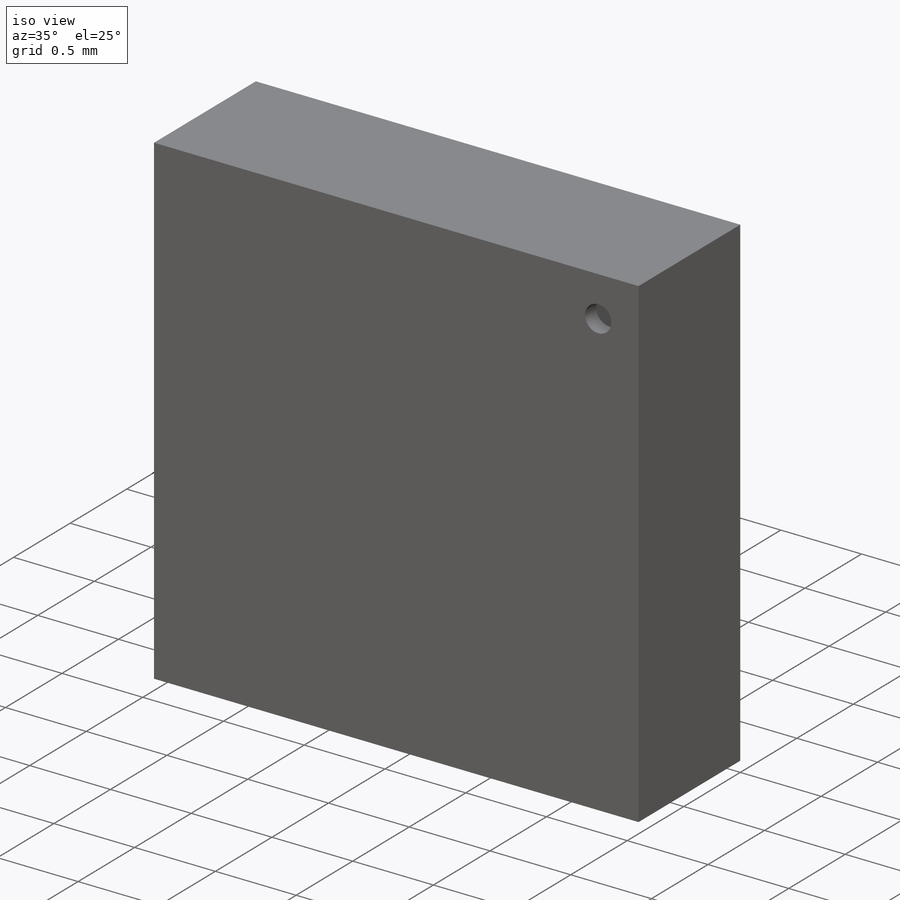
[diagram: iso view]
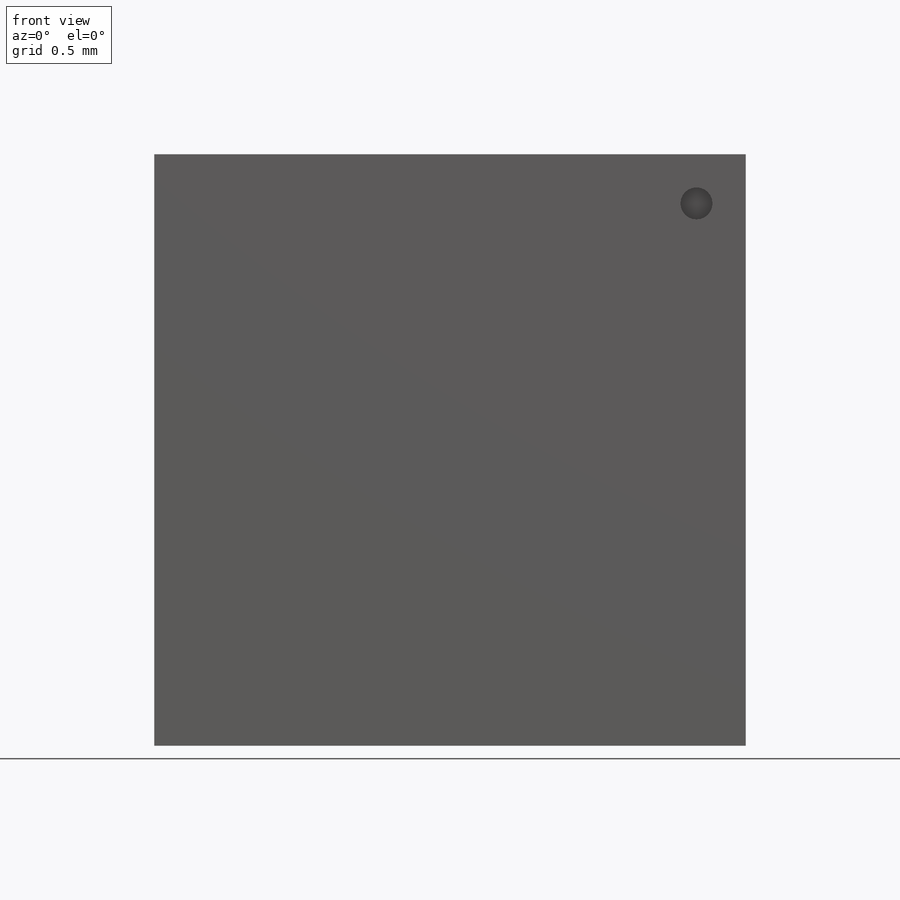
[diagram: front view]
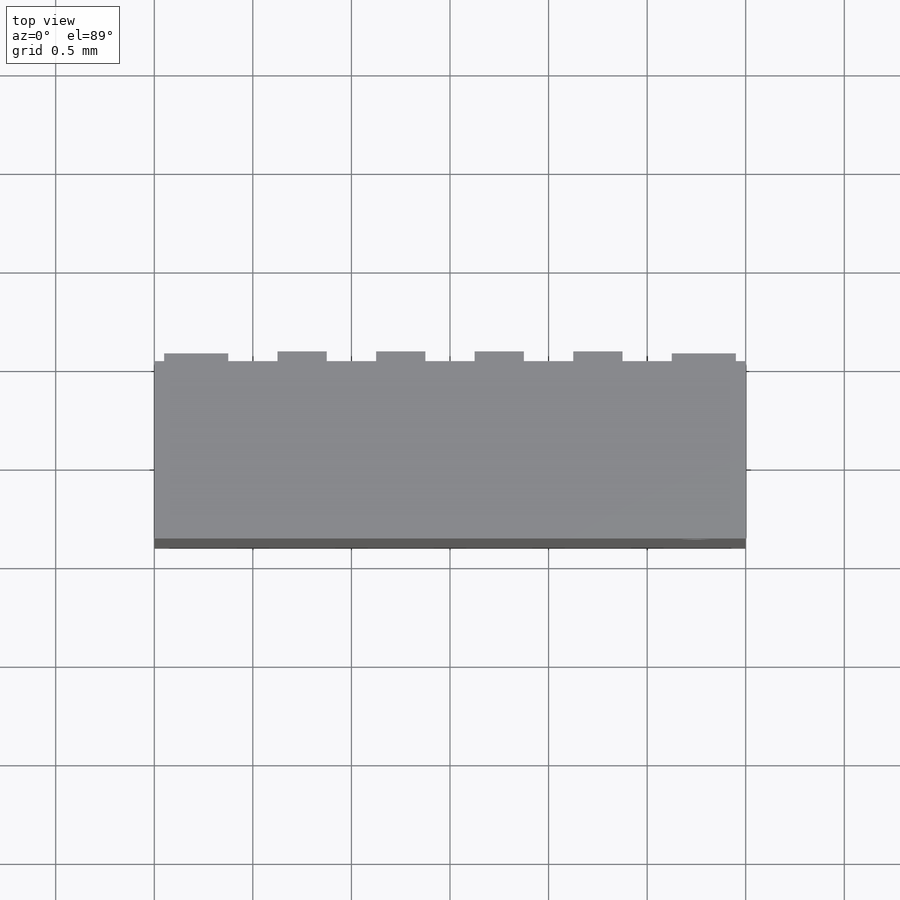
[diagram: top view]
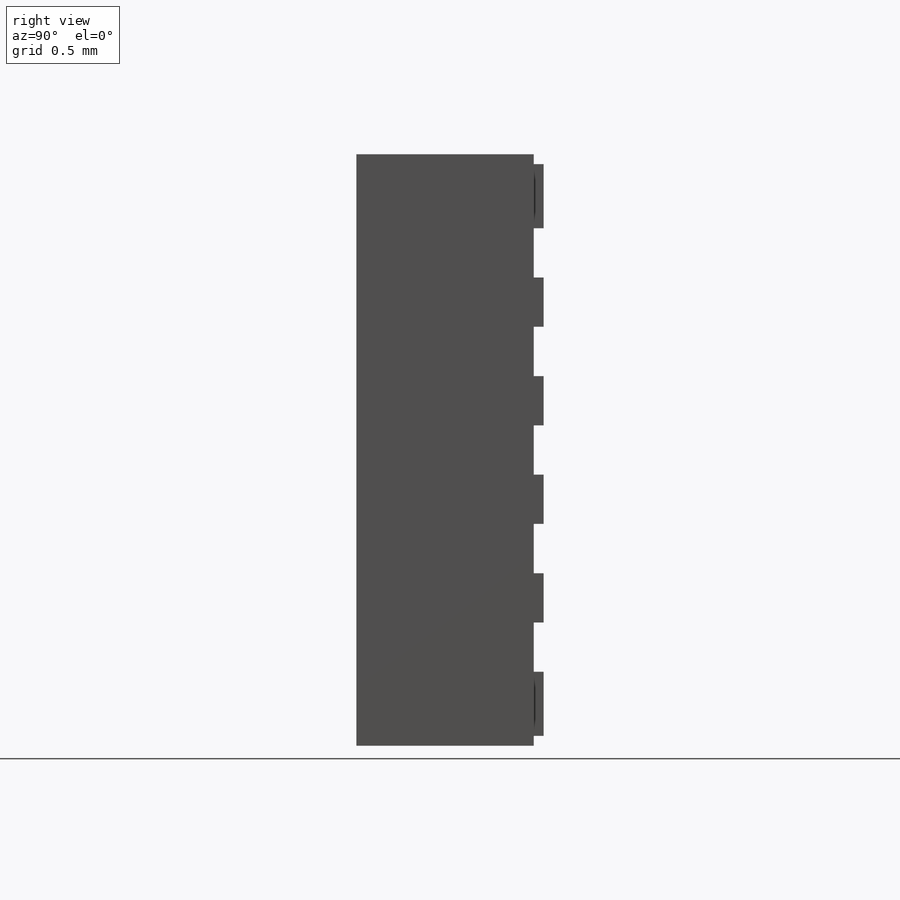
[diagram: right view]
SOLIDWORKS PART (.sldprt)
format: sldprt  version: not decoded by parser v0  size: 199,680 bytes
history: native  units: mm
features: sketch x3, extrude x2, plane x2, material x1, cut_extrude x1, pattern_circular x1 (+13 scaffold rows collapsed)
feature tree (23):
  scaffold x13  (default folders/planes/origin — collapsed)
  material  "Material <not specified>"
  sketch  "Sketch2"  dims[D1=3.0mm D2=3.0mm]
  extrude  "Boss-Extrude1"  Depth=0.9mm
  sketch  "Sketch3"  dims[D1=0.25mm D2=0.25mm]
  cut_extrude  "Cut-Extrude1"  Depth=0.1mm
  sketch  "Sketch4"  dims[D1=0.625mm D2=0.325mm D3=0.25mm D4=0.05mm D5=4.0]
  extrude  "Boss-Extrude2"  Depth=0.05mm
  plane  "Plane1"
  plane  "Plane2"
  pattern_circular  "CirPattern1"  Count=2 Angle=90deg
decode coverage: 7 of 7 modeling features carry decoded parameters
note: suppression state not decoded; provenance and decode notes live in map.json
